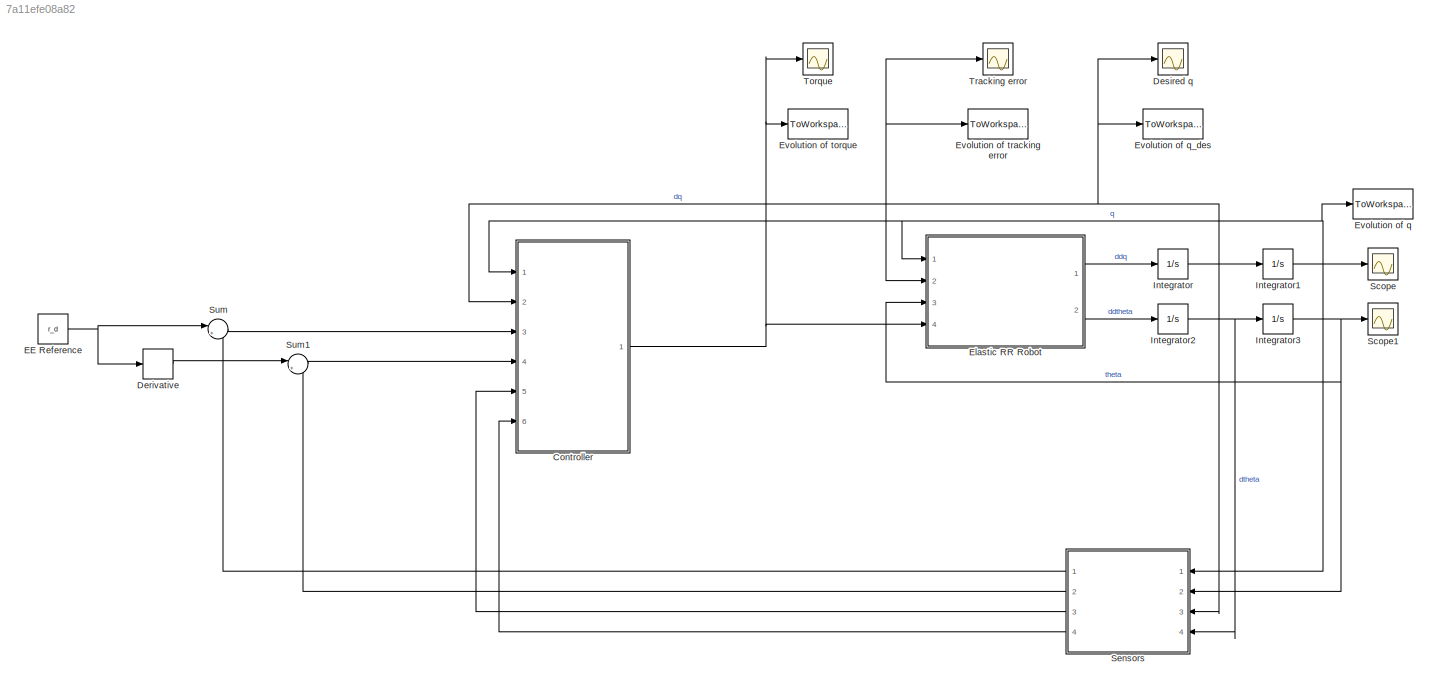
MODEL slx_7a11efe08a82
KIND model
CONFIG AbsTol = auto
CONFIG EnableMultiTasking = off
CONFIG FixedStep = auto
CONFIG MaxStep = auto
CONFIG MinStep = auto
CONFIG RelTol = 1e-3
CONFIG SampleTimeConstraint = Unconstrained
CONFIG SolverName = VariableStepAuto
CONFIG StartTime = 0.0
CONFIG StopTime = 1.0
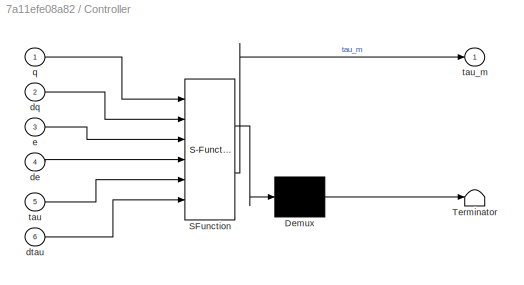
BLOCK [SubSystem] Controller
  ErrorFcn = Stateflow.Translate.translate
  PermitHierarchicalResolution = ExplicitOnly
  Ports = [6, 1]
  RequestExecContextInheritance = off
  SFBlockType = MATLAB Function
  TreatAsAtomicUnit = on
BLOCK [Demux] Controller/ Demux 
  Outputs = 1
  Ports = [1, 1]
BLOCK [S-Function] Controller/ SFunction 
  EnableBusSupport = on
  FunctionName = sf_sfun
  Parameters = B,K,Kp,Ks,Kt,Kv,S,a1,a2,m1,m2
  PortCounts = [6 2]
  Ports = [6, 2]
  SFcnIsStateOwnerBlock = off
  SFunctionDeploymentMode = off
  Tag = Stateflow S-Function 1
BLOCK [Terminator] Controller/ Terminator 
BLOCK [Inport] Controller/de
  Port = 4
BLOCK [Inport] Controller/dq
  Port = 2
BLOCK [Inport] Controller/dtau
  Port = 6
BLOCK [Inport] Controller/e
  Port = 3
BLOCK [Inport] Controller/q
BLOCK [Inport] Controller/tau
  Port = 5
BLOCK [Outport] Controller/tau_m
BLOCK [Derivative] Derivative
BLOCK [Scope] Desired q
  Floating = off
  NumInputPorts = 1
  Ports = [1]
  ScopeSpecificationString = Simulink.scopes.TimeScopeBlockCfg('CurrentConfiguration', extmgr.ConfigurationSet(extmgr.Configuration('Core','General UI',true),extmgr.Configuration('Core','Source UI',true),extmgr.Configuration('Sources','WiredSimulink',true,'DataLoggingVariableName','ScopeData2'),extmgr.Configuration('Visuals','Time Domain',true,'SerializedDisplays',{struct('MinYLimReal','-26182722.83835','MaxYLimReal','1748209...<+1483ch>
BLOCK [Constant] EE Reference
  Value = r_d
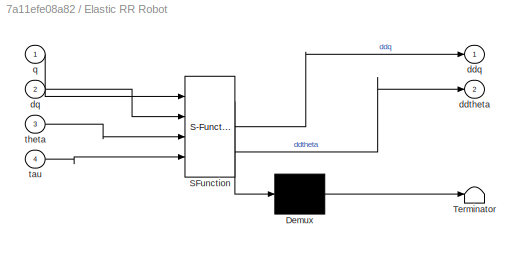
BLOCK [SubSystem] Elastic RR Robot
  ErrorFcn = Stateflow.Translate.translate
  PermitHierarchicalResolution = ExplicitOnly
  Ports = [4, 2]
  RequestExecContextInheritance = off
  SFBlockType = MATLAB Function
  TreatAsAtomicUnit = on
BLOCK [Demux] Elastic RR Robot/ Demux 
  Outputs = 1
  Ports = [1, 1]
BLOCK [S-Function] Elastic RR Robot/ SFunction 
  EnableBusSupport = on
  FunctionName = sf_sfun
  Parameters = B,K,S,a1,a2,m1,m2
  PortCounts = [4 3]
  Ports = [4, 3]
  SFcnIsStateOwnerBlock = off
  SFunctionDeploymentMode = off
  Tag = Stateflow S-Function 2
BLOCK [Terminator] Elastic RR Robot/ Terminator 
BLOCK [Outport] Elastic RR Robot/ddq
BLOCK [Outport] Elastic RR Robot/ddtheta
  Port = 2
BLOCK [Inport] Elastic RR Robot/dq
  Port = 2
BLOCK [Inport] Elastic RR Robot/q
BLOCK [Inport] Elastic RR Robot/tau
  Port = 4
BLOCK [Inport] Elastic RR Robot/theta
  Port = 3
BLOCK [ToWorkspace] Evolution of q
  FixptAsFi = on
  MaxDataPoints = inf
  Ports = [1]
  SampleTime = -1
  SaveFormat = Timeseries
  VariableName = q_out
BLOCK [ToWorkspace] Evolution of q_des
  FixptAsFi = on
  MaxDataPoints = inf
  Ports = [1]
  SampleTime = -1
  SaveFormat = Timeseries
  VariableName = q_des_out
BLOCK [ToWorkspace] Evolution of torque
  FixptAsFi = on
  MaxDataPoints = inf
  Ports = [1]
  SampleTime = -1
  SaveFormat = Timeseries
  VariableName = tau_out
BLOCK [ToWorkspace] Evolution of tracking error
  FixptAsFi = on
  MaxDataPoints = inf
  Ports = [1]
  SampleTime = -1
  SaveFormat = Timeseries
  VariableName = e_out
BLOCK [Integrator] Integrator
  InitialCondition = dq0
  Ports = [1, 1]
BLOCK [Integrator] Integrator1
  InitialCondition = q0
  Ports = [1, 1]
BLOCK [Integrator] Integrator2
  InitialCondition = dtheta0
  Ports = [1, 1]
BLOCK [Integrator] Integrator3
  InitialCondition = theta0
  Ports = [1, 1]
BLOCK [Scope] Scope
  Floating = off
  NumInputPorts = 1
  Ports = [1]
  ScopeSpecificationString = Simulink.scopes.TimeScopeBlockCfg('CurrentConfiguration', extmgr.ConfigurationSet(extmgr.Configuration('Core','General UI',true),extmgr.Configuration('Core','Source UI',true),extmgr.Configuration('Sources','WiredSimulink',true),extmgr.Configuration('Visuals','Time Domain',true,'SerializedDisplays',{struct('MinYLimReal','-2.38286','MaxYLimReal','4.82869','YLabelReal','','MinYLimMag','0.00000','MaxY...<+1356ch>
BLOCK [Scope] Scope1
  Floating = off
  NumInputPorts = 1
  Ports = [1]
  ScopeSpecificationString = Simulink.scopes.TimeScopeBlockCfg('CurrentConfiguration', extmgr.ConfigurationSet(extmgr.Configuration('Core','General UI',true),extmgr.Configuration('Core','Source UI',true),extmgr.Configuration('Sources','WiredSimulink',true,'DataLoggingVariableName','ScopeData1'),extmgr.Configuration('Visuals','Time Domain',true,'SerializedDisplays',{struct('MinYLimReal','-4.92698','MaxYLimReal','28.63482','YLa...<+1380ch>
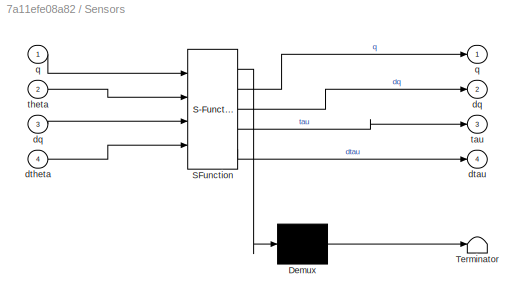
BLOCK [SubSystem] Sensors
  ErrorFcn = Stateflow.Translate.translate
  PermitHierarchicalResolution = ExplicitOnly
  Ports = [4, 4]
  RequestExecContextInheritance = off
  SFBlockType = MATLAB Function
  TreatAsAtomicUnit = on
BLOCK [Demux] Sensors/ Demux 
  Outputs = 1
  Ports = [1, 1]
BLOCK [S-Function] Sensors/ SFunction 
  EnableBusSupport = on
  FunctionName = sf_sfun
  Parameters = K
  PortCounts = [4 5]
  Ports = [4, 5]
  SFcnIsStateOwnerBlock = off
  SFunctionDeploymentMode = off
  Tag = Stateflow S-Function 3
BLOCK [Terminator] Sensors/ Terminator 
BLOCK [Outport] Sensors/dq
  Port = 2
BLOCK [Inport] Sensors/dq 
  Port = 3
BLOCK [Outport] Sensors/dtau
  Port = 4
BLOCK [Inport] Sensors/dtheta
  Port = 4
BLOCK [Outport] Sensors/q
BLOCK [Inport] Sensors/q 
BLOCK [Outport] Sensors/tau
  Port = 3
BLOCK [Inport] Sensors/theta
  Port = 2
BLOCK [Sum] Sum
  Inputs = |+-
  Ports = [2, 1]
BLOCK [Sum] Sum1
  Inputs = |+-
  Ports = [2, 1]
BLOCK [Scope] Torque
  Floating = off
  NumInputPorts = 1
  Ports = [1]
  ScopeSpecificationString = Simulink.scopes.TimeScopeBlockCfg('CurrentConfiguration', extmgr.ConfigurationSet(extmgr.Configuration('Core','General UI',true),extmgr.Configuration('Core','Source UI',true),extmgr.Configuration('Sources','WiredSimulink',true,'DataLoggingVariableName','ScopeData1'),extmgr.Configuration('Visuals','Time Domain',true,'SerializedDisplays',{struct('MinYLimReal','-1045388234.73154','MaxYLimReal','10465...<+1525ch>
BLOCK [Scope] Tracking error
  Floating = off
  NumInputPorts = 1
  Ports = [1]
  ScopeSpecificationString = Simulink.scopes.TimeScopeBlockCfg('CurrentConfiguration', extmgr.ConfigurationSet(extmgr.Configuration('Core','General UI',true),extmgr.Configuration('Core','Source UI',true),extmgr.Configuration('Sources','WiredSimulink',true,'DataLoggingVariableName','ScopeData3'),extmgr.Configuration('Visuals','Time Domain',true,'SerializedDisplays',{struct('MinYLimReal','-0.01486','MaxYLimReal','0.02953','YLab...<+1443ch>
NET Controller:1 -> Elastic RR Robot:4, Evolution of torque:1, Torque:1
LINE Derivative:1 -> Sum1:1
NET EE Reference:1 -> Derivative:1, Sum:1
LINE Elastic RR Robot:1 -> Integrator:1
LINE Elastic RR Robot:2 -> Integrator2:1
NET Integrator1:1 -> Controller:1, Elastic RR Robot:1, Evolution of q:1, Scope:1, Sensors:1
NET Integrator2:1 -> Integrator3:1, Sensors:4
NET Integrator3:1 -> Elastic RR Robot:3, Scope1:1, Sensors:2
NET Integrator:1 -> Controller:2, Desired q:1, Elastic RR Robot:2, Evolution of q_des:1, Evolution of tracking error:1, Integrator1:1, Sensors:3, Tracking error:1
LINE Sensors:1 -> Sum:2
LINE Sensors:2 -> Sum1:2
LINE Sensors:3 -> Controller:5
LINE Sensors:4 -> Controller:6
LINE Sum1:1 -> Controller:4
LINE Sum:1 -> Controller:3
note: NET lines group one-source signal fan-out (src -> all destinations, sorted); 1:1 wires keep LINE
CHART Controller states=1 transitions=1
  STATE_LABEL 'eML_blk_kernel()'
  STATE_LABEL 'SCRIPT:\nfunction tau_m = fcn(q, dq, e, de, tau, dtau, K, B, S, m1, m2, a1, a2, ...\n    Kp, Kv, Ks, Kt)\n\n% Compute dynamic matrices\n[M, C, G] = dynamics(q, dq, m1, m2, a1, a2);\n\n% PD Control\ntau_d = Kp*e + Kv*de;\n\n% Torque Control\ntau_m = tau_d + Kt*(tau_d - tau) + Ks*dtau;\n\n'
CHART Elastic RR Robot states=1 transitions=1
  STATE_LABEL 'eML_blk_kernel()'
  STATE_LABEL "SCRIPT:\nfunction [ddq, ddtheta] = fcn(q, dq, theta, tau, K, B, S, m1, m2, a1, a2)\n\n% Compute dynamic matrices\n[M, C, G] = dynamics(q, dq, m1, m2, a1, a2);\n\n% State evolutions\nddq = M\\(S.'*K*(theta - q) - C*dq - G);\nddtheta = B\\(tau - K*(theta - q));\n"
CHART Sensors states=1 transitions=1
  STATE_LABEL 'eML_blk_kernel()'
  STATE_LABEL 'SCRIPT:\nfunction [q, dq, tau, dtau] = fcn(q, theta, dq, dtheta, K)\n\ntau = K*(theta - q);\ndtau = K*(dtheta - dq);'
CHART  states=0 transitions=0
CHART  states=0 transitions=0
CHART  states=0 transitions=0
